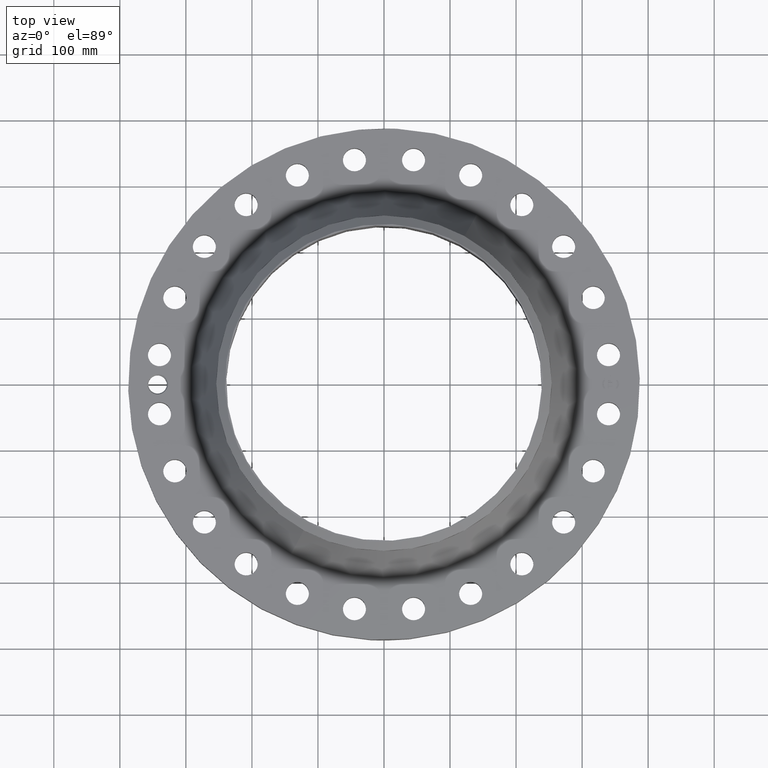
[diagram: clean part render]
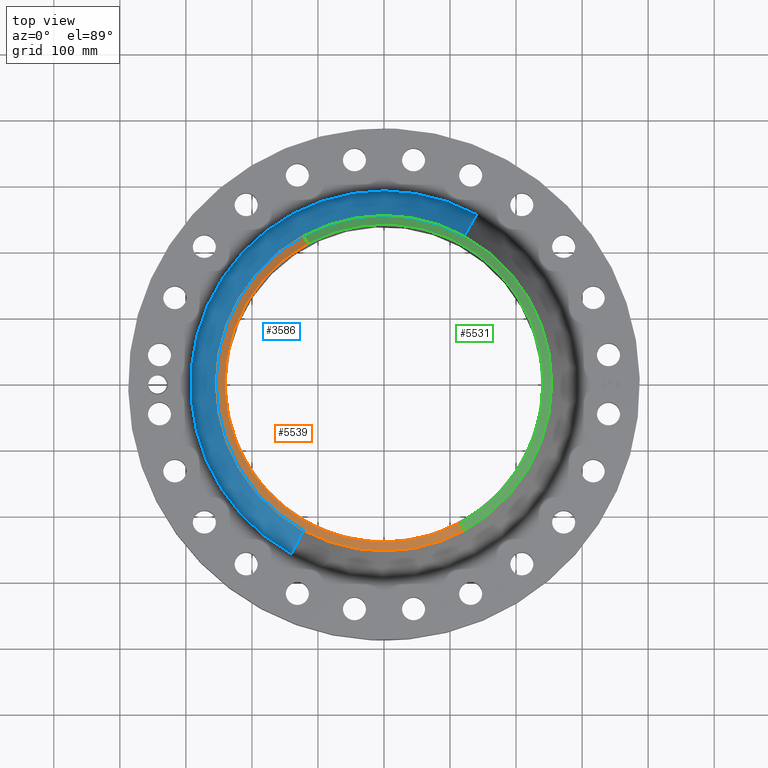
[diagram: same view with three faces highlighted in distinct colors, each labeled with its STEP entity id]
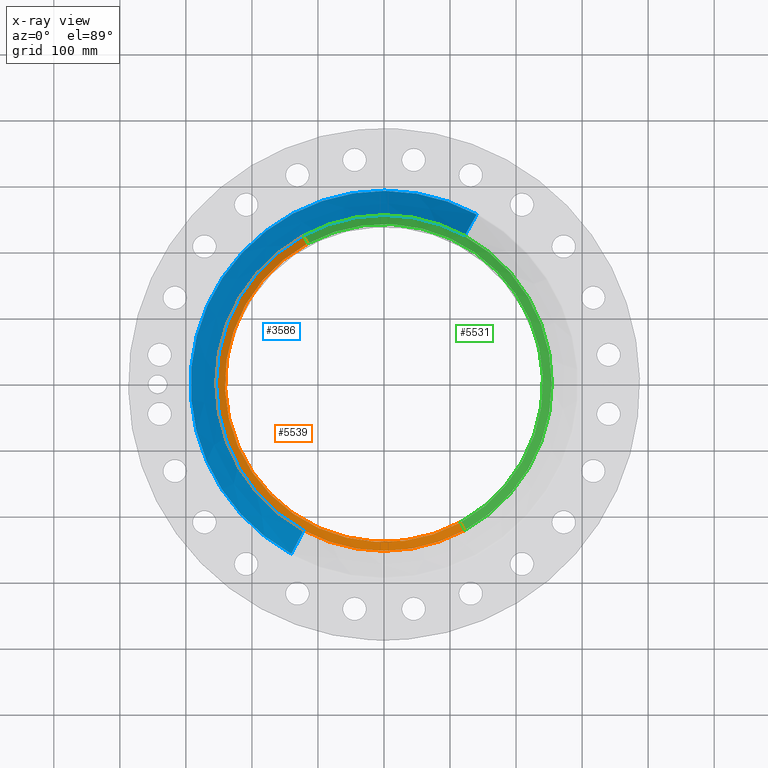
[diagram: x-ray of the same camera — body ghosted, the three highlighted faces saturated]
A machine part, top view with three faces highlighted in distinct colors.
The next image is the same camera in x-ray (body ghosted, the three faces saturated) — at least one of them is partly hidden behind the body in this view.
Their STEP definitions:

[orange] entity #5539 — the highlighted conical surface has half-angle 52.5 deg.
#4365=AXIS2_PLACEMENT_3D('Circle Axis2P3D',#4363,#4364,$) ;
#4378=AXIS2_PLACEMENT_3D('Circle Axis2P3D',#4376,#4377,$) ;
#5168=AXIS2_PLACEMENT_3D('Circle Axis2P3D',#5166,#5167,$) ;
#5512=AXIS2_PLACEMENT_3D('Cone Axis2P3D',#5509,#5510,#5511) ;
#4346=CARTESIAN_POINT('Vertex',(-4.79425538606,-8.77582561894,6.04462721704)) ;
#4360=CARTESIAN_POINT('Vertex',(4.79425538606,-8.77582561894,6.04462721704)) ;
#4363=CARTESIAN_POINT('Axis2P3D Location',(0.,0.,6.04462721704)) ;
#4376=CARTESIAN_POINT('Axis2P3D Location',(0.,0.,6.04462721704)) ;
#4380=CARTESIAN_POINT('Vertex',(-4.79425538606,8.77582561894,6.04462721704)) ;
#5161=CARTESIAN_POINT('Vertex',(4.54722665854,-8.3236425663,6.44000000003)) ;
#5163=CARTESIAN_POINT('Vertex',(-4.54722665854,8.3236425663,6.44000000003)) ;
#5166=CARTESIAN_POINT('Axis2P3D Location',(0.,0.,6.44000000003)) ;
#5509=CARTESIAN_POINT('Axis2P3D Location',(0.,0.,6.44000000003)) ;
#5514=CARTESIAN_POINT('Line Origine',(-4.6707410223,8.54973409262,6.24231360853)) ;
#5519=CARTESIAN_POINT('Line Origine',(4.6707410223,-8.54973409262,6.24231360853)) ;
#4364=DIRECTION('Axis2P3D Direction',(0.,0.,-0.0393700787402)) ;
#4377=DIRECTION('Axis2P3D Direction',(0.,0.,-0.0393700787402)) ;
#5167=DIRECTION('Axis2P3D Direction',(0.,0.,-0.0393700787402)) ;
#5510=DIRECTION('Axis2P3D Direction',(-0.,-0.,-0.0393700787402)) ;
#5511=DIRECTION('Axis2P3D XDirection',(0.0188750212049,-0.0345504945626,0.)) ;
#5515=DIRECTION('Vector Direction',(-0.014974561121,0.02741075027,-0.023966985394)) ;
#5520=DIRECTION('Vector Direction',(0.014974561121,-0.02741075027,-0.023966985394)) ;
#5516=VECTOR('Line Direction',#5515,0.0393700787402) ;
#5521=VECTOR('Line Direction',#5520,0.0393700787402) ;
#5533=ORIENTED_EDGE('',*,*,#5523,.F.) ;
#5534=ORIENTED_EDGE('',*,*,#5170,.F.) ;
#5535=ORIENTED_EDGE('',*,*,#5518,.T.) ;
#5536=ORIENTED_EDGE('',*,*,#4382,.T.) ;
#5537=ORIENTED_EDGE('',*,*,#4367,.F.) ;
#5539=ADVANCED_FACE('PartBody',(#5538),#5513,.T.) ;
#4366=CIRCLE('generated circle',#4365,10.) ;
#4379=CIRCLE('generated circle',#4378,10.) ;
#5169=CIRCLE('generated circle',#5168,9.48474015752) ;
#5513=CONICAL_SURFACE('Cone',#5512,9.48474015752,0.916297857297) ;
#4367=EDGE_CURVE('',#4361,#4347,#4366,.T.) ;
#4382=EDGE_CURVE('',#4381,#4347,#4379,.F.) ;
#5170=EDGE_CURVE('',#5164,#5162,#5169,.F.) ;
#5518=EDGE_CURVE('',#5164,#4381,#5517,.T.) ;
#5523=EDGE_CURVE('',#5162,#4361,#5522,.T.) ;
#5532=EDGE_LOOP('',(#5533,#5534,#5535,#5536,#5537)) ;
#5538=FACE_OUTER_BOUND('',#5532,.T.) ;
#5517=LINE('Line',#5514,#5516) ;
#5522=LINE('Line',#5519,#5521) ;
#4347=VERTEX_POINT('',#4346) ;
#4361=VERTEX_POINT('',#4360) ;
#4381=VERTEX_POINT('',#4380) ;
#5162=VERTEX_POINT('',#5161) ;
#5164=VERTEX_POINT('',#5163) ;

[blue] entity #3586 — the highlighted conical surface has half-angle 25.652 deg.
#2872=AXIS2_PLACEMENT_3D('Circle Axis2P3D',#2870,#2871,$) ;
#3547=AXIS2_PLACEMENT_3D('Cone Axis2P3D',#3544,#3545,#3546) ;
#3577=AXIS2_PLACEMENT_3D('Circle Axis2P3D',#3575,#3576,$) ;
#2848=CARTESIAN_POINT('Vertex',(5.52649122712,10.1161743354,2.62805157486)) ;
#2855=CARTESIAN_POINT('Vertex',(-5.52649122712,-10.1161743354,2.62805157486)) ;
#2870=CARTESIAN_POINT('Axis2P3D Location',(0.,0.,2.62805157486)) ;
#3544=CARTESIAN_POINT('Axis2P3D Location',(0.,0.,5.8084067446)) ;
#3549=CARTESIAN_POINT('Line Origine',(5.16037330659,9.44599997717,4.21822915973)) ;
#3553=CARTESIAN_POINT('Vertex',(4.79425538606,8.77582561894,5.8084067446)) ;
#3560=CARTESIAN_POINT('Vertex',(-4.79425538606,-8.77582561894,5.8084067446)) ;
#3563=CARTESIAN_POINT('Line Origine',(-5.16037330659,-9.44599997717,4.21822915973)) ;
#3575=CARTESIAN_POINT('Axis2P3D Location',(0.,0.,5.8084067446)) ;
#2871=DIRECTION('Axis2P3D Direction',(0.,0.,-0.0393700787402)) ;
#3545=DIRECTION('Axis2P3D Direction',(0.,0.,-0.0393700787402)) ;
#3546=DIRECTION('Axis2P3D XDirection',(-0.0188750212049,-0.0345504945626,0.)) ;
#3550=DIRECTION('Vector Direction',(0.00817106355171,0.0149570315047,-0.0354897735835)) ;
#3564=DIRECTION('Vector Direction',(-0.00817106355171,-0.0149570315047,-0.0354897735835)) ;
#3576=DIRECTION('Axis2P3D Direction',(0.,0.,-0.0393700787402)) ;
#3551=VECTOR('Line Direction',#3550,0.0393700787402) ;
#3565=VECTOR('Line Direction',#3564,0.0393700787402) ;
#3581=ORIENTED_EDGE('',*,*,#2874,.F.) ;
#3582=ORIENTED_EDGE('',*,*,#3567,.T.) ;
#3583=ORIENTED_EDGE('',*,*,#3579,.T.) ;
#3584=ORIENTED_EDGE('',*,*,#3555,.F.) ;
#3586=ADVANCED_FACE('PartBody',(#3585),#3548,.T.) ;
#2873=CIRCLE('generated circle',#2872,11.5273192229) ;
#3578=CIRCLE('generated circle',#3577,10.) ;
#3548=CONICAL_SURFACE('Cone',#3547,10.,0.447711299411) ;
#2874=EDGE_CURVE('',#2856,#2849,#2873,.T.) ;
#3555=EDGE_CURVE('',#2849,#3554,#3552,.F.) ;
#3567=EDGE_CURVE('',#2856,#3561,#3566,.F.) ;
#3579=EDGE_CURVE('',#3561,#3554,#3578,.T.) ;
#3580=EDGE_LOOP('',(#3581,#3582,#3583,#3584)) ;
#3585=FACE_OUTER_BOUND('',#3580,.T.) ;
#3552=LINE('Line',#3549,#3551) ;
#3566=LINE('Line',#3563,#3565) ;
#2849=VERTEX_POINT('',#2848) ;
#2856=VERTEX_POINT('',#2855) ;
#3554=VERTEX_POINT('',#3553) ;
#3561=VERTEX_POINT('',#3560) ;

[green] entity #5531 — the highlighted conical surface has half-angle 52.5 deg.
#4358=AXIS2_PLACEMENT_3D('Circle Axis2P3D',#4356,#4357,$) ;
#4385=AXIS2_PLACEMENT_3D('Circle Axis2P3D',#4383,#4384,$) ;
#5159=AXIS2_PLACEMENT_3D('Circle Axis2P3D',#5157,#5158,$) ;
#5512=AXIS2_PLACEMENT_3D('Cone Axis2P3D',#5509,#5510,#5511) ;
#4353=CARTESIAN_POINT('Vertex',(4.79425538606,8.77582561894,6.04462721704)) ;
#4356=CARTESIAN_POINT('Axis2P3D Location',(0.,0.,6.04462721704)) ;
#4360=CARTESIAN_POINT('Vertex',(4.79425538606,-8.77582561894,6.04462721704)) ;
#4380=CARTESIAN_POINT('Vertex',(-4.79425538606,8.77582561894,6.04462721704)) ;
#4383=CARTESIAN_POINT('Axis2P3D Location',(0.,0.,6.04462721704)) ;
#5157=CARTESIAN_POINT('Axis2P3D Location',(0.,0.,6.44000000003)) ;
#5161=CARTESIAN_POINT('Vertex',(4.54722665854,-8.3236425663,6.44000000003)) ;
#5163=CARTESIAN_POINT('Vertex',(-4.54722665854,8.3236425663,6.44000000003)) ;
#5509=CARTESIAN_POINT('Axis2P3D Location',(0.,0.,6.44000000003)) ;
#5514=CARTESIAN_POINT('Line Origine',(-4.6707410223,8.54973409262,6.24231360853)) ;
#5519=CARTESIAN_POINT('Line Origine',(4.6707410223,-8.54973409262,6.24231360853)) ;
#4357=DIRECTION('Axis2P3D Direction',(0.,0.,-0.0393700787402)) ;
#4384=DIRECTION('Axis2P3D Direction',(0.,0.,-0.0393700787402)) ;
#5158=DIRECTION('Axis2P3D Direction',(0.,0.,-0.0393700787402)) ;
#5510=DIRECTION('Axis2P3D Direction',(-0.,-0.,-0.0393700787402)) ;
#5511=DIRECTION('Axis2P3D XDirection',(0.0188750212049,-0.0345504945626,0.)) ;
#5515=DIRECTION('Vector Direction',(-0.014974561121,0.02741075027,-0.023966985394)) ;
#5520=DIRECTION('Vector Direction',(0.014974561121,-0.02741075027,-0.023966985394)) ;
#5516=VECTOR('Line Direction',#5515,0.0393700787402) ;
#5521=VECTOR('Line Direction',#5520,0.0393700787402) ;
#5525=ORIENTED_EDGE('',*,*,#5518,.F.) ;
#5526=ORIENTED_EDGE('',*,*,#5165,.F.) ;
#5527=ORIENTED_EDGE('',*,*,#5523,.T.) ;
#5528=ORIENTED_EDGE('',*,*,#4362,.T.) ;
#5529=ORIENTED_EDGE('',*,*,#4387,.F.) ;
#5531=ADVANCED_FACE('PartBody',(#5530),#5513,.T.) ;
#4359=CIRCLE('generated circle',#4358,10.) ;
#4386=CIRCLE('generated circle',#4385,10.) ;
#5160=CIRCLE('generated circle',#5159,9.48474015752) ;
#5513=CONICAL_SURFACE('Cone',#5512,9.48474015752,0.916297857297) ;
#4362=EDGE_CURVE('',#4361,#4354,#4359,.F.) ;
#4387=EDGE_CURVE('',#4381,#4354,#4386,.T.) ;
#5165=EDGE_CURVE('',#5162,#5164,#5160,.F.) ;
#5518=EDGE_CURVE('',#5164,#4381,#5517,.T.) ;
#5523=EDGE_CURVE('',#5162,#4361,#5522,.T.) ;
#5524=EDGE_LOOP('',(#5525,#5526,#5527,#5528,#5529)) ;
#5530=FACE_OUTER_BOUND('',#5524,.T.) ;
#5517=LINE('Line',#5514,#5516) ;
#5522=LINE('Line',#5519,#5521) ;
#4354=VERTEX_POINT('',#4353) ;
#4361=VERTEX_POINT('',#4360) ;
#4381=VERTEX_POINT('',#4380) ;
#5162=VERTEX_POINT('',#5161) ;
#5164=VERTEX_POINT('',#5163) ;